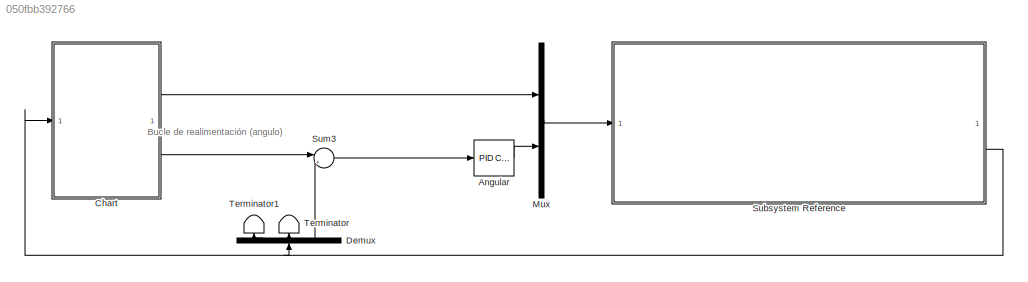
MODEL slx_050fbb392766
KIND model
CONFIG AbsTol = auto
CONFIG EnableMultiTasking = on
CONFIG FixedStep = auto
CONFIG MaxStep = auto
CONFIG MinStep = auto
CONFIG RelTol = 1e-3
CONFIG SampleTimeConstraint = Unconstrained
CONFIG SolverName = FixedStepAuto
CONFIG StartTime = 0.0
CONFIG StopTime = 50
WORKSPACE source: mxarray member
WORKSPACE d = 0.15
BLOCK [Reference] Angular  REF=slpidlib/PID Controller
  LibrarySourceBlock = simulink/Continuous/PID Controller
  SourceBlock = slpidlib/PID Controller
  SourceType = PID 1dof
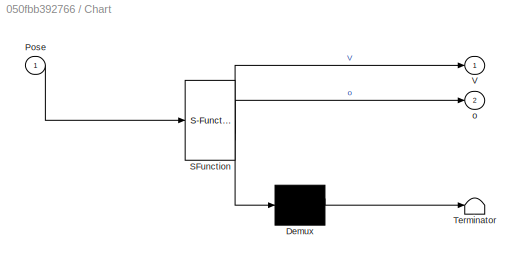
BLOCK [SubSystem] Chart
  ErrorFcn = Stateflow.Translate.translate
  PermitHierarchicalResolution = ExplicitOnly
  SFBlockType = Chart
  TreatAsAtomicUnit = on
BLOCK [Demux] Chart/ Demux 
  Outputs = 1
BLOCK [S-Function] Chart/ SFunction 
  EnableBusSupport = on
  FunctionName = sf_sfun
  PortCounts = [1 3]
  SFcnIsStateOwnerBlock = off
  SFunctionDeploymentMode = off
  Tag = Stateflow S-Function 3
BLOCK [Terminator] Chart/ Terminator 
BLOCK [Inport] Chart/Pose
BLOCK [Outport] Chart/V
BLOCK [Outport] Chart/o
  Port = 2
BLOCK [Demux] Demux
  NameLocation = right
  Outputs = 3
BLOCK [Mux] Mux
  DisplayOption = bar
  Inputs = 2
BLOCK [SubSystem] Subsystem Reference
  ReferencedSubsystem = PieroCalculos
BLOCK [Sum] Sum3
  Inputs = |+-
BLOCK [Terminator] Terminator
  NameLocation = right
BLOCK [Terminator] Terminator1
  NameLocation = right
ANNOTATION (root): Bucle de realimentación (angulo)
LINE Angular:1 -> Mux:2
LINE Chart:1 -> Mux:1
LINE Chart:2 -> Sum3:1
LINE Demux:1 -> Terminator1:1
LINE Demux:2 -> Terminator:1
LINE Demux:3 -> Sum3:2
LINE Mux:1 -> Subsystem Reference:1
NET Subsystem Reference:2 -> Chart:1, Demux:1
LINE Sum3:1 -> Angular:1
note: NET lines group one-source signal fan-out (src -> all destinations, sorted); 1:1 wires keep LINE
CHART Chart states=12 transitions=12
  STATE_LABEL 'Avanza3\nentry:\nV=0.25;\no=-2*pi;\n'
  STATE_LABEL 'Giro2\nentry:\nV=0;\no=-5*pi/2;\n'
  STATE_LABEL 'Giro1\nentry:\nV=0;\no=-2*pi;\n'
  STATE_LABEL 'Avanza4\nentry:\nV=0.25;\no=-5*pi/2;\n'
  STATE_LABEL 'Avanza2\nentry:\nV=0.25;\no=-3*pi/2;\n'
  STATE_LABEL 'Circunferencia\nduring:\nV=0.25;\no=o-pi/1000;\n'
  STATE_LABEL 'Giro3\nentry:\nV=0;\no=-9*pi/4;\n'
  STATE_LABEL 'Avanza5\nentry:\nV=0.25;\no=-9*pi/4;\n'
  STATE_LABEL 'Avanza1\nentry:\nV=0.25;\no=0;\n'
  STATE_LABEL 'Giro_180\nentry:\nV=0;\no=-pi;\n'
  STATE_LABEL 'Inicio\nentry:\nV=0;\no=0;'
  STATE_LABEL 'Parada\nentry:\nV=0;\no=-9*pi/4;\n'
CHART  states=0 transitions=0
